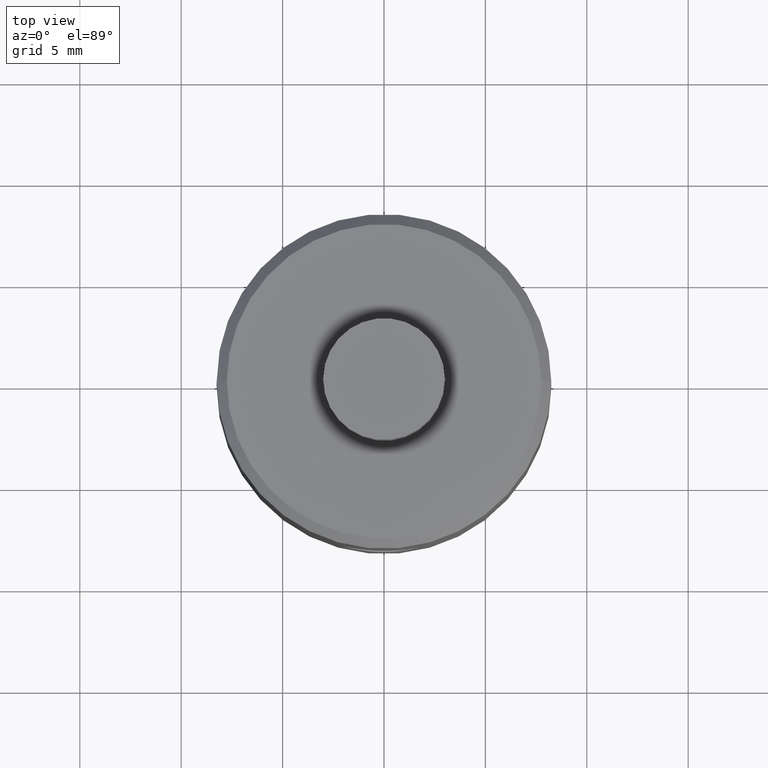
[diagram: clean part render]
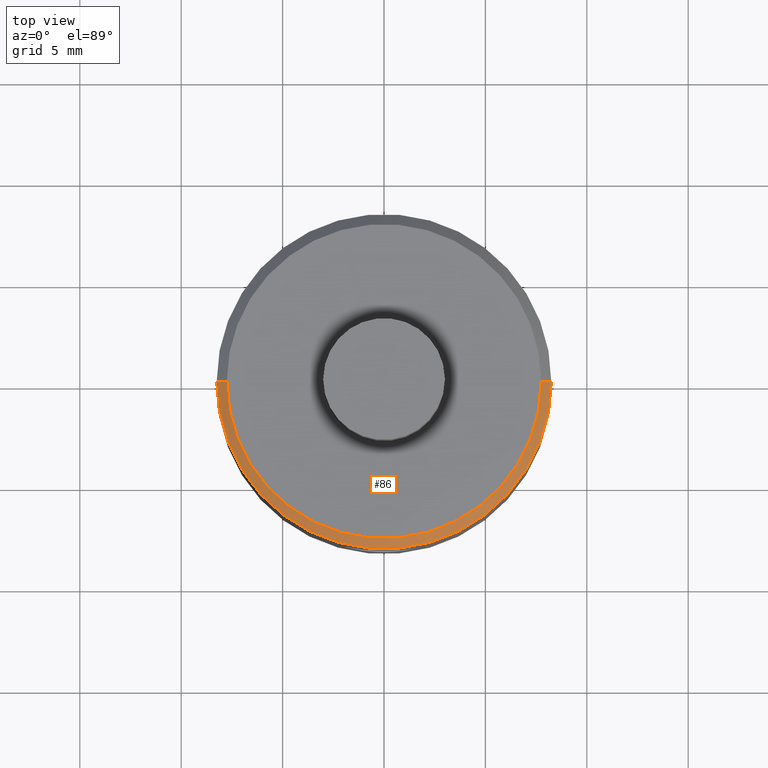
[diagram: same view with one face highlighted and labeled with its STEP entity id]
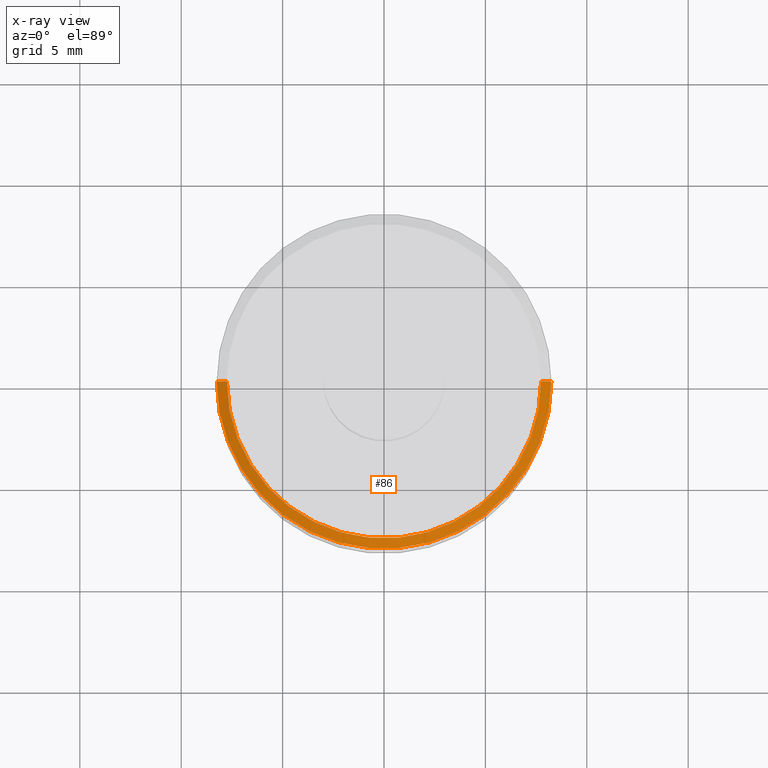
[diagram: x-ray of the same camera — body ghosted, the highlighted face saturated]
A machine part, top view. The second image highlights one B-rep face of the part: STEP entity #86.
The next image is the same camera in x-ray: the body ghosted, the highlighted face saturated — about 0% of this face is hidden behind the body in this view.
In plain terms, the highlighted conical surface has half-angle 45 deg.
Its self-contained STEP definition (entity closure, byte-faithful):
#35 = DIRECTION ( 'NONE',  ( -0.7071067811865536800, 0.0000000000000000000, -0.7071067811865414700 ) ) ;
#47 = LINE ( 'NONE', #513, #366 ) ;
#68 = DIRECTION ( 'NONE',  ( 0.7071067811865536800, 8.659560562355009300E-017, -0.7071067811865414700 ) ) ;
#73 = DIRECTION ( 'NONE',  ( 1.000000000000000000, 0.0000000000000000000, 0.0000000000000000000 ) ) ;
#74 = ORIENTED_EDGE ( 'NONE', *, *, #749, .F. ) ;
#86 = ADVANCED_FACE ( 'NONE', ( #410 ), #575, .T. ) ;
#167 = EDGE_CURVE ( 'NONE', #305, #330, #368, .T. ) ;
#222 = EDGE_CURVE ( 'NONE', #317, #305, #745, .T. ) ;
#224 = DIRECTION ( 'NONE',  ( -0.0000000000000000000, -0.0000000000000000000, -1.000000000000000000 ) ) ;
#243 = CARTESIAN_POINT ( 'NONE',  ( 8.250000000000000000, 1.010333609296566500E-015, 7.499999999999998200 ) ) ;
#250 = ORIENTED_EDGE ( 'NONE', *, *, #167, .F. ) ;
#259 = CARTESIAN_POINT ( 'NONE',  ( 7.749999999999989300, 9.797174393178819700E-016, 8.000000000000000000 ) ) ;
#269 = CARTESIAN_POINT ( 'NONE',  ( 0.0000000000000000000, 0.0000000000000000000, 7.499999999999998200 ) ) ;
#304 = VECTOR ( 'NONE', #68, 1000.000000000000000 ) ;
#305 = VERTEX_POINT ( 'NONE', #259 ) ;
#308 = CARTESIAN_POINT ( 'NONE',  ( 0.0000000000000000000, 0.0000000000000000000, 8.000000000000000000 ) ) ;
#317 = VERTEX_POINT ( 'NONE', #374 ) ;
#330 = VERTEX_POINT ( 'NONE', #506 ) ;
#344 = CARTESIAN_POINT ( 'NONE',  ( -8.250000000000000000, 1.010333609296566500E-015, 7.499999999999998200 ) ) ;
#353 = CARTESIAN_POINT ( 'NONE',  ( 0.0000000000000000000, 0.0000000000000000000, 7.499999999999998200 ) ) ;
#366 = VECTOR ( 'NONE', #35, 1000.000000000000000 ) ;
#368 = LINE ( 'NONE', #243, #304 ) ;
#374 = CARTESIAN_POINT ( 'NONE',  ( -7.749999999999989300, 0.0000000000000000000, 8.000000000000000000 ) ) ;
#400 = EDGE_LOOP ( 'NONE', ( #250, #524, #469, #74 ) ) ;
#402 = AXIS2_PLACEMENT_3D ( 'NONE', #353, #224, #597 ) ;
#410 = FACE_OUTER_BOUND ( 'NONE', #400, .T. ) ;
#460 = AXIS2_PLACEMENT_3D ( 'NONE', #308, #542, #73 ) ;
#469 = ORIENTED_EDGE ( 'NONE', *, *, #697, .T. ) ;
#477 = VERTEX_POINT ( 'NONE', #344 ) ;
#506 = CARTESIAN_POINT ( 'NONE',  ( 8.250000000000000000, 0.0000000000000000000, 7.499999999999998200 ) ) ;
#509 = DIRECTION ( 'NONE',  ( 1.000000000000000000, 0.0000000000000000000, 0.0000000000000000000 ) ) ;
#510 = AXIS2_PLACEMENT_3D ( 'NONE', #269, #733, #509 ) ;
#513 = CARTESIAN_POINT ( 'NONE',  ( -8.250000000000000000, 0.0000000000000000000, 7.499999999999998200 ) ) ;
#524 = ORIENTED_EDGE ( 'NONE', *, *, #222, .F. ) ;
#542 = DIRECTION ( 'NONE',  ( 0.0000000000000000000, 0.0000000000000000000, 1.000000000000000000 ) ) ;
#575 = CONICAL_SURFACE ( 'NONE', #402, 8.250000000000000000, 0.7853981633974569400 ) ;
#597 = DIRECTION ( 'NONE',  ( -1.000000000000000000, 0.0000000000000000000, 0.0000000000000000000 ) ) ;
#697 = EDGE_CURVE ( 'NONE', #317, #477, #47, .T. ) ;
#733 = DIRECTION ( 'NONE',  ( -0.0000000000000000000, -0.0000000000000000000, -1.000000000000000000 ) ) ;
#742 = CIRCLE ( 'NONE', #510, 8.250000000000000000 ) ;
#745 = CIRCLE ( 'NONE', #460, 7.749999999999989300 ) ;
#749 = EDGE_CURVE ( 'NONE', #330, #477, #742, .T. ) ;